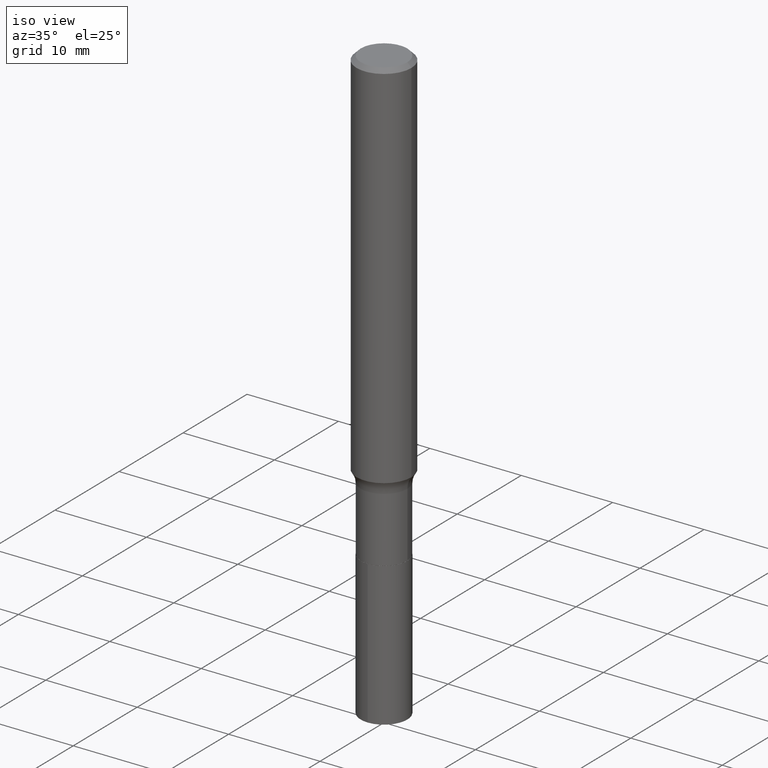
[diagram: clean part render]
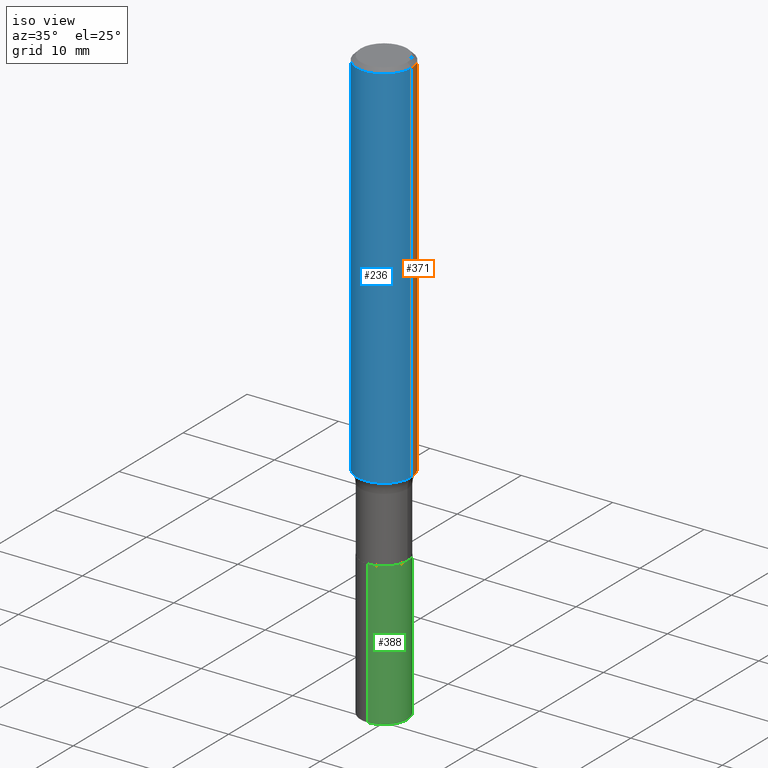
[diagram: same view with three faces highlighted in distinct colors, each labeled with its STEP entity id]
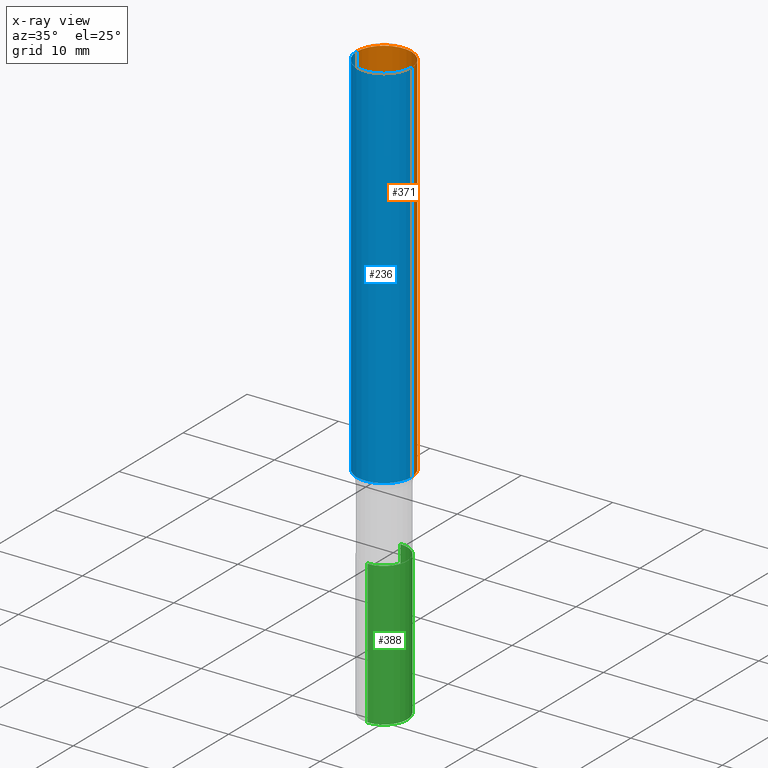
[diagram: x-ray of the same camera — body ghosted, the three highlighted faces saturated]
A machine part, iso view with three faces highlighted in distinct colors.
The next image is the same camera in x-ray (body ghosted, the three faces saturated) — at least one of them is partly hidden behind the body in this view.
Their STEP definitions:

[orange] entity #371 — the highlighted cylindrical surface (edge-blend (fillet) strip) has radius 2.9997 mm, axis along (-0, 0, 1).
#3 = AXIS2_PLACEMENT_3D ( 'NONE', #333, #296, #6 ) ;
#6 = DIRECTION ( 'NONE',  ( 1.000000000000000000, -6.982962677686267499E-15, 0.000000000000000000 ) ) ;
#14 = DIRECTION ( 'NONE',  ( -2.445468806185136877E-29, 3.491481338843145188E-15, 1.000000000000000000 ) ) ;
#57 = LINE ( 'NONE', #145, #401 ) ;
#62 = CIRCLE ( 'NONE', #3, 0.1181000000000000105 ) ;
#85 = EDGE_CURVE ( 'NONE', #122, #415, #327, .T. ) ;
#90 = EDGE_LOOP ( 'NONE', ( #365, #231, #336, #269 ) ) ;
#98 = DIRECTION ( 'NONE',  ( -2.445468806185136597E-29, 3.491481338843145583E-15, 1.000000000000000000 ) ) ;
#101 = EDGE_CURVE ( 'NONE', #415, #300, #62, .T. ) ;
#122 = VERTEX_POINT ( 'NONE', #386 ) ;
#142 = DIRECTION ( 'NONE',  ( -2.445468806185136597E-29, 3.491481338843145583E-15, 1.000000000000000000 ) ) ;
#145 = CARTESIAN_POINT ( 'NONE',  ( -0.1181000000000001077, 8.391509709326790846E-16, -5.809262341591049389E-30 ) ) ;
#146 = CYLINDRICAL_SURFACE ( 'NONE', #424, 0.1181000000000001077 ) ;
#177 = FACE_OUTER_BOUND ( 'NONE', #90, .T. ) ;
#200 = VERTEX_POINT ( 'NONE', #287 ) ;
#210 = EDGE_CURVE ( 'NONE', #200, #300, #57, .T. ) ;
#227 = DIRECTION ( 'NONE',  ( -2.445468806185136877E-29, 3.491481338843145188E-15, 1.000000000000000000 ) ) ;
#231 = ORIENTED_EDGE ( 'NONE', *, *, #210, .T. ) ;
#245 = CARTESIAN_POINT ( 'NONE',  ( 0.1181000000000000105, -8.865394841523550528E-16, -0.01771500000000012648 ) ) ;
#252 = DIRECTION ( 'NONE',  ( 1.000000000000000000, -6.982962677686268288E-15, 0.000000000000000000 ) ) ;
#269 = ORIENTED_EDGE ( 'NONE', *, *, #85, .F. ) ;
#287 = CARTESIAN_POINT ( 'NONE',  ( -0.1181000000000001909, -4.785058585154701101E-15, -1.610837638889081269 ) ) ;
#296 = DIRECTION ( 'NONE',  ( -2.445468806185136597E-29, 3.491481338843145583E-15, 1.000000000000000000 ) ) ;
#300 = VERTEX_POINT ( 'NONE', #390 ) ;
#303 = AXIS2_PLACEMENT_3D ( 'NONE', #463, #142, #252 ) ;
#319 = DIRECTION ( 'NONE',  ( 1.000000000000000000, -6.982962677686266711E-15, 4.876176775795935793E-29 ) ) ;
#327 = LINE ( 'NONE', #405, #377 ) ;
#333 = CARTESIAN_POINT ( 'NONE',  ( 4.332147990157000247E-31, -6.185159191760676557E-17, -0.01771500000000012648 ) ) ;
#336 = ORIENTED_EDGE ( 'NONE', *, *, #101, .F. ) ;
#337 = EDGE_CURVE ( 'NONE', #122, #200, #341, .T. ) ;
#341 = CIRCLE ( 'NONE', #303, 0.1181000000000002048 ) ;
#365 = ORIENTED_EDGE ( 'NONE', *, *, #337, .T. ) ;
#371 = ADVANCED_FACE ( 'NONE', ( #177 ), #146, .T. ) ;
#377 = VECTOR ( 'NONE', #227, 39.37007874015748143 ) ;
#386 = CARTESIAN_POINT ( 'NONE',  ( 0.1181000000000001909, -6.448897448322129927E-15, -1.610837638889081269 ) ) ;
#390 = CARTESIAN_POINT ( 'NONE',  ( -0.1181000000000000105, -2.003879603069814157E-15, -0.01771500000000012648 ) ) ;
#397 = CARTESIAN_POINT ( 'NONE',  ( 0.000000000000000000, 0.000000000000000000, 0.000000000000000000 ) ) ;
#401 = VECTOR ( 'NONE', #14, 39.37007874015748143 ) ;
#405 = CARTESIAN_POINT ( 'NONE',  ( 0.1181000000000001077, -8.246878922347488542E-16, 5.758764772215005345E-30 ) ) ;
#415 = VERTEX_POINT ( 'NONE', #245 ) ;
#424 = AXIS2_PLACEMENT_3D ( 'NONE', #397, #98, #319 ) ;
#463 = CARTESIAN_POINT ( 'NONE',  ( 3.939253197732165806E-29, -5.624209556087381664E-15, -1.610837638889081269 ) ) ;

[blue] entity #236 — the highlighted cylindrical surface (edge-blend (fillet) strip) has radius 2.9997 mm, axis along (-0, 0, 1).
#14 = DIRECTION ( 'NONE',  ( -2.445468806185136877E-29, 3.491481338843145188E-15, 1.000000000000000000 ) ) ;
#39 = AXIS2_PLACEMENT_3D ( 'NONE', #114, #402, #459 ) ;
#57 = LINE ( 'NONE', #145, #401 ) ;
#85 = EDGE_CURVE ( 'NONE', #122, #415, #327, .T. ) ;
#103 = DIRECTION ( 'NONE',  ( 1.000000000000000000, -6.982962677686266711E-15, 4.876176775795935793E-29 ) ) ;
#114 = CARTESIAN_POINT ( 'NONE',  ( 3.939253197732165806E-29, -5.624209556087381664E-15, -1.610837638889081269 ) ) ;
#120 = EDGE_CURVE ( 'NONE', #200, #122, #121, .T. ) ;
#121 = CIRCLE ( 'NONE', #39, 0.1181000000000002048 ) ;
#122 = VERTEX_POINT ( 'NONE', #386 ) ;
#126 = CYLINDRICAL_SURFACE ( 'NONE', #374, 0.1181000000000001077 ) ;
#145 = CARTESIAN_POINT ( 'NONE',  ( -0.1181000000000001077, 8.391509709326790846E-16, -5.809262341591049389E-30 ) ) ;
#161 = EDGE_CURVE ( 'NONE', #300, #415, #306, .T. ) ;
#190 = ORIENTED_EDGE ( 'NONE', *, *, #210, .F. ) ;
#196 = EDGE_LOOP ( 'NONE', ( #190, #266, #347, #273 ) ) ;
#200 = VERTEX_POINT ( 'NONE', #287 ) ;
#210 = EDGE_CURVE ( 'NONE', #200, #300, #57, .T. ) ;
#227 = DIRECTION ( 'NONE',  ( -2.445468806185136877E-29, 3.491481338843145188E-15, 1.000000000000000000 ) ) ;
#236 = ADVANCED_FACE ( 'NONE', ( #461 ), #126, .T. ) ;
#245 = CARTESIAN_POINT ( 'NONE',  ( 0.1181000000000000105, -8.865394841523550528E-16, -0.01771500000000012648 ) ) ;
#255 = CARTESIAN_POINT ( 'NONE',  ( 4.332147990157000247E-31, -6.185159191760676557E-17, -0.01771500000000012648 ) ) ;
#265 = AXIS2_PLACEMENT_3D ( 'NONE', #255, #293, #346 ) ;
#266 = ORIENTED_EDGE ( 'NONE', *, *, #120, .T. ) ;
#273 = ORIENTED_EDGE ( 'NONE', *, *, #161, .F. ) ;
#287 = CARTESIAN_POINT ( 'NONE',  ( -0.1181000000000001909, -4.785058585154701101E-15, -1.610837638889081269 ) ) ;
#293 = DIRECTION ( 'NONE',  ( -2.445468806185136597E-29, 3.491481338843145583E-15, 1.000000000000000000 ) ) ;
#300 = VERTEX_POINT ( 'NONE', #390 ) ;
#306 = CIRCLE ( 'NONE', #265, 0.1181000000000000105 ) ;
#307 = DIRECTION ( 'NONE',  ( -2.445468806185136597E-29, 3.491481338843145583E-15, 1.000000000000000000 ) ) ;
#327 = LINE ( 'NONE', #405, #377 ) ;
#342 = CARTESIAN_POINT ( 'NONE',  ( 0.000000000000000000, 0.000000000000000000, 0.000000000000000000 ) ) ;
#346 = DIRECTION ( 'NONE',  ( 1.000000000000000000, -6.982962677686267499E-15, 0.000000000000000000 ) ) ;
#347 = ORIENTED_EDGE ( 'NONE', *, *, #85, .T. ) ;
#374 = AXIS2_PLACEMENT_3D ( 'NONE', #342, #307, #103 ) ;
#377 = VECTOR ( 'NONE', #227, 39.37007874015748143 ) ;
#386 = CARTESIAN_POINT ( 'NONE',  ( 0.1181000000000001909, -6.448897448322129927E-15, -1.610837638889081269 ) ) ;
#390 = CARTESIAN_POINT ( 'NONE',  ( -0.1181000000000000105, -2.003879603069814157E-15, -0.01771500000000012648 ) ) ;
#401 = VECTOR ( 'NONE', #14, 39.37007874015748143 ) ;
#402 = DIRECTION ( 'NONE',  ( -2.445468806185136597E-29, 3.491481338843145583E-15, 1.000000000000000000 ) ) ;
#405 = CARTESIAN_POINT ( 'NONE',  ( 0.1181000000000001077, -8.246878922347488542E-16, 5.758764772215005345E-30 ) ) ;
#415 = VERTEX_POINT ( 'NONE', #245 ) ;
#459 = DIRECTION ( 'NONE',  ( 1.000000000000000000, -6.982962677686268288E-15, 0.000000000000000000 ) ) ;
#461 = FACE_OUTER_BOUND ( 'NONE', #196, .T. ) ;

[green] entity #388 — the highlighted cylindrical surface (edge-blend (fillet) strip) has radius 2.5527 mm, axis along (-0, 0, 1).
#10 = VERTEX_POINT ( 'NONE', #185 ) ;
#28 = CARTESIAN_POINT ( 'NONE',  ( 6.260876778854223555E-29, -8.931215480289977409E-15, -2.559100000000000374 ) ) ;
#30 = DIRECTION ( 'NONE',  ( -6.982962677686265922E-15, -1.000000000000000000, 2.718256710113694497E-15 ) ) ;
#58 = ORIENTED_EDGE ( 'NONE', *, *, #363, .T. ) ;
#59 = CARTESIAN_POINT ( 'NONE',  ( 4.746899499685969430E-29, -6.777314426828430156E-15, -1.941100000000000270 ) ) ;
#72 = AXIS2_PLACEMENT_3D ( 'NONE', #59, #357, #30 ) ;
#95 = ORIENTED_EDGE ( 'NONE', *, *, #458, .F. ) ;
#97 = DIRECTION ( 'NONE',  ( -2.449801422602351827E-29, 3.485276785536480924E-15, 1.000000000000000000 ) ) ;
#123 = VECTOR ( 'NONE', #352, 39.37007874015748143 ) ;
#129 = ORIENTED_EDGE ( 'NONE', *, *, #408, .F. ) ;
#157 = CIRCLE ( 'NONE', #72, 0.1005000000000000060 ) ;
#179 = DIRECTION ( 'NONE',  ( -6.982962677686265922E-15, -1.000000000000000000, 5.436513420227388995E-15 ) ) ;
#180 = CARTESIAN_POINT ( 'NONE',  ( -7.017877491074223465E-16, -0.1005000000000067922, -1.941100000000000048 ) ) ;
#185 = CARTESIAN_POINT ( 'NONE',  ( 7.140954494389633452E-16, 0.1004999999999932336, -1.941100000000000492 ) ) ;
#202 = VECTOR ( 'NONE', #314, 39.37007874015748143 ) ;
#209 = CARTESIAN_POINT ( 'NONE',  ( -7.017877491074223465E-16, -0.1005000000000067922, -1.941100000000000048 ) ) ;
#244 = LINE ( 'NONE', #209, #123 ) ;
#248 = CARTESIAN_POINT ( 'NONE',  ( 7.140954494389480611E-16, 0.1004999999999932336, -1.941100000000000492 ) ) ;
#275 = EDGE_LOOP ( 'NONE', ( #418, #58, #129, #95 ) ) ;
#281 = AXIS2_PLACEMENT_3D ( 'NONE', #28, #431, #179 ) ;
#283 = CARTESIAN_POINT ( 'NONE',  ( 4.746899499685969430E-29, -6.777314426828430156E-15, -1.941100000000000270 ) ) ;
#288 = FACE_OUTER_BOUND ( 'NONE', #275, .T. ) ;
#289 = EDGE_CURVE ( 'NONE', #451, #343, #351, .T. ) ;
#314 = DIRECTION ( 'NONE',  ( -2.449801422602351547E-29, 3.485276785536480924E-15, 1.000000000000000000 ) ) ;
#316 = CYLINDRICAL_SURFACE ( 'NONE', #328, 0.1005000000000000060 ) ;
#328 = AXIS2_PLACEMENT_3D ( 'NONE', #283, #97, #460 ) ;
#343 = VERTEX_POINT ( 'NONE', #423 ) ;
#351 = CIRCLE ( 'NONE', #281, 0.1005000000000000060 ) ;
#352 = DIRECTION ( 'NONE',  ( -2.449801422602351547E-29, 3.485276785536480924E-15, 1.000000000000000000 ) ) ;
#354 = LINE ( 'NONE', #248, #202 ) ;
#357 = DIRECTION ( 'NONE',  ( -2.449801422602351827E-29, 3.485276785536480924E-15, 1.000000000000000000 ) ) ;
#363 = EDGE_CURVE ( 'NONE', #343, #10, #354, .T. ) ;
#388 = ADVANCED_FACE ( 'NONE', ( #288 ), #316, .T. ) ;
#408 = EDGE_CURVE ( 'NONE', #433, #10, #157, .T. ) ;
#418 = ORIENTED_EDGE ( 'NONE', *, *, #289, .T. ) ;
#422 = CARTESIAN_POINT ( 'NONE',  ( -7.017877491074071610E-16, -0.1005000000000089433, -2.559099999999999930 ) ) ;
#423 = CARTESIAN_POINT ( 'NONE',  ( 7.140954494389557524E-16, 0.1004999999999910826, -2.559100000000001263 ) ) ;
#431 = DIRECTION ( 'NONE',  ( -2.449801422602351827E-29, 3.485276785536480924E-15, 1.000000000000000000 ) ) ;
#433 = VERTEX_POINT ( 'NONE', #180 ) ;
#451 = VERTEX_POINT ( 'NONE', #422 ) ;
#458 = EDGE_CURVE ( 'NONE', #451, #433, #244, .T. ) ;
#460 = DIRECTION ( 'NONE',  ( -6.982962677686265922E-15, -1.000000000000000000, 2.718256710113694497E-15 ) ) ;